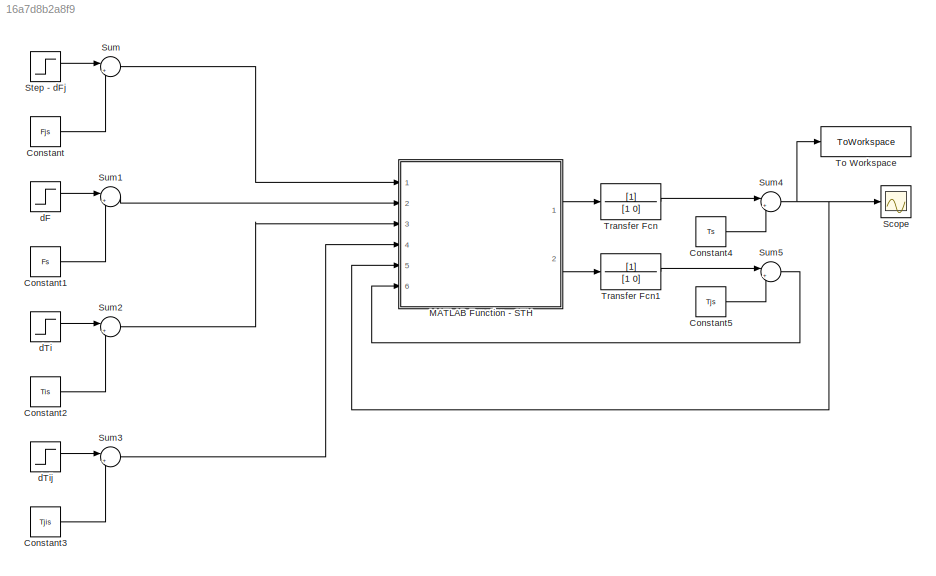
MODEL slx_16a7d8b2a8f9
KIND model
CONFIG AbsTol = auto
CONFIG EnableMultiTasking = off
CONFIG FixedStep = auto
CONFIG MaxStep = auto
CONFIG MinStep = auto
CONFIG RelTol = 1e-3
CONFIG SampleTimeConstraint = Unconstrained
CONFIG SolverName = VariableStepAuto
CONFIG StartTime = 0.0
CONFIG StopTime = 1800
BLOCK [Constant] Constant
  Value = Fjs
BLOCK [Constant] Constant1
  Value = Fs
BLOCK [Constant] Constant2
  Value = Tis
BLOCK [Constant] Constant3
  Value = Tjis
BLOCK [Constant] Constant4
  Value = Ts
BLOCK [Constant] Constant5
  Value = Tjs
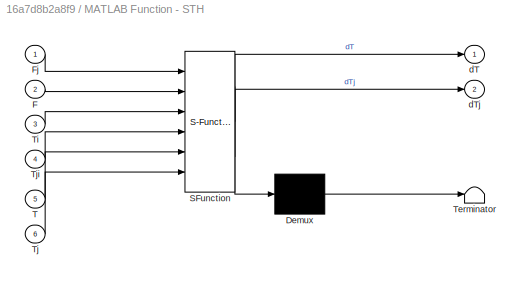
BLOCK [SubSystem] MATLAB Function - STH
  ErrorFcn = Stateflow.Translate.translate
  PermitHierarchicalResolution = ExplicitOnly
  Ports = [6, 2]
  RequestExecContextInheritance = off
  SFBlockType = MATLAB Function
  TreatAsAtomicUnit = on
BLOCK [Demux] MATLAB Function - STH/ Demux 
  Outputs = 1
  Ports = [1, 1]
BLOCK [S-Function] MATLAB Function - STH/ SFunction 
  EnableBusSupport = on
  FunctionName = sf_sfun
  PortCounts = [6 3]
  Ports = [6, 3]
  SFcnIsStateOwnerBlock = off
  SFunctionDeploymentMode = off
  Tag = Stateflow S-Function 2
BLOCK [Terminator] MATLAB Function - STH/ Terminator 
BLOCK [Inport] MATLAB Function - STH/F
  Port = 2
BLOCK [Inport] MATLAB Function - STH/Fj
BLOCK [Inport] MATLAB Function - STH/T
  Port = 5
BLOCK [Inport] MATLAB Function - STH/Ti
  Port = 3
BLOCK [Inport] MATLAB Function - STH/Tj
  Port = 6
BLOCK [Inport] MATLAB Function - STH/Tji
  Port = 4
BLOCK [Outport] MATLAB Function - STH/dT
BLOCK [Outport] MATLAB Function - STH/dTj
  Port = 2
BLOCK [Scope] Scope
  Floating = off
  NumInputPorts = 1
  Ports = [1]
  ScopeSpecificationString = Simulink.scopes.TimeScopeBlockCfg('CurrentConfiguration', extmgr.ConfigurationSet(extmgr.Configuration('Core','General UI',true),extmgr.Configuration('Core','Source UI',true),extmgr.Configuration('Sources','WiredSimulink',true),extmgr.Configuration('Visuals','Time Domain',true,'SerializedDisplays',{struct('MinYLimReal','51.56054','MaxYLimReal','52.65504','YLabelReal','','MinYLimMag','51.56054','Ma...<+1386ch>
BLOCK [Step] Step - dFj
  After = dFj
  SampleTime = 0
BLOCK [Sum] Sum
  Inputs = |++
  Ports = [2, 1]
BLOCK [Sum] Sum1
  Inputs = |++
  Ports = [2, 1]
BLOCK [Sum] Sum2
  Inputs = |++
  Ports = [2, 1]
BLOCK [Sum] Sum3
  Inputs = |++
  Ports = [2, 1]
BLOCK [Sum] Sum4
  Inputs = |++
  Ports = [2, 1]
BLOCK [Sum] Sum5
  Inputs = |++
  Ports = [2, 1]
BLOCK [ToWorkspace] To Workspace
  FixptAsFi = on
  MaxDataPoints = inf
  Ports = [1]
  SampleTime = -1
  SaveFormat = Structure With Time
  VariableName = simout1
BLOCK [TransferFcn] Transfer Fcn
  Denominator = [1 0]
BLOCK [TransferFcn] Transfer Fcn1
  Denominator = [1 0]
BLOCK [Step] dF
  After = dF
  SampleTime = 0
BLOCK [Step] dTi
  After = dTi
  SampleTime = 0
BLOCK [Step] dTij
  After = dTij
  SampleTime = 0
LINE Constant1:1 -> Sum1:2
LINE Constant2:1 -> Sum2:2
LINE Constant3:1 -> Sum3:2
LINE Constant4:1 -> Sum4:2
LINE Constant5:1 -> Sum5:2
LINE Constant:1 -> Sum:2
LINE MATLAB Function - STH:1 -> Transfer Fcn:1
LINE MATLAB Function - STH:2 -> Transfer Fcn1:1
LINE Step - dFj:1 -> Sum:1
LINE Sum1:1 -> MATLAB Function - STH:2
LINE Sum2:1 -> MATLAB Function - STH:3
LINE Sum3:1 -> MATLAB Function - STH:4
NET Sum4:1 -> MATLAB Function - STH:5, Scope:1, To Workspace:1
LINE Sum5:1 -> MATLAB Function - STH:6
LINE Sum:1 -> MATLAB Function - STH:1
LINE Transfer Fcn1:1 -> Sum5:1
LINE Transfer Fcn:1 -> Sum4:1
LINE dF:1 -> Sum1:1
LINE dTi:1 -> Sum2:1
LINE dTij:1 -> Sum3:1
note: NET lines group one-source signal fan-out (src -> all destinations, sorted); 1:1 wires keep LINE
CHART MATLAB Function - STH states=1 transitions=1
  STATE_LABEL 'eML_blk_kernel()'
  STATE_LABEL 'SCRIPT:\nfunction [dT, dTj] = fcn(Fj, F, Ti, Tji, T, Tj)\n\nV = 283.168e-3;\nUA = 3.065;\npcp = 2.165e3;\nVj = 28.319e-3;\npcpj = 2.165e3;\n\ndT = (F/V)*(Ti - T) + (UA/(V*pcp))*(Tj - T);\n\ndTj = (Fj/Vj)*(Tji - Tj) - ((UA/(Vj*pcpj))*(Tj - T));'
CHART  states=0 transitions=0
